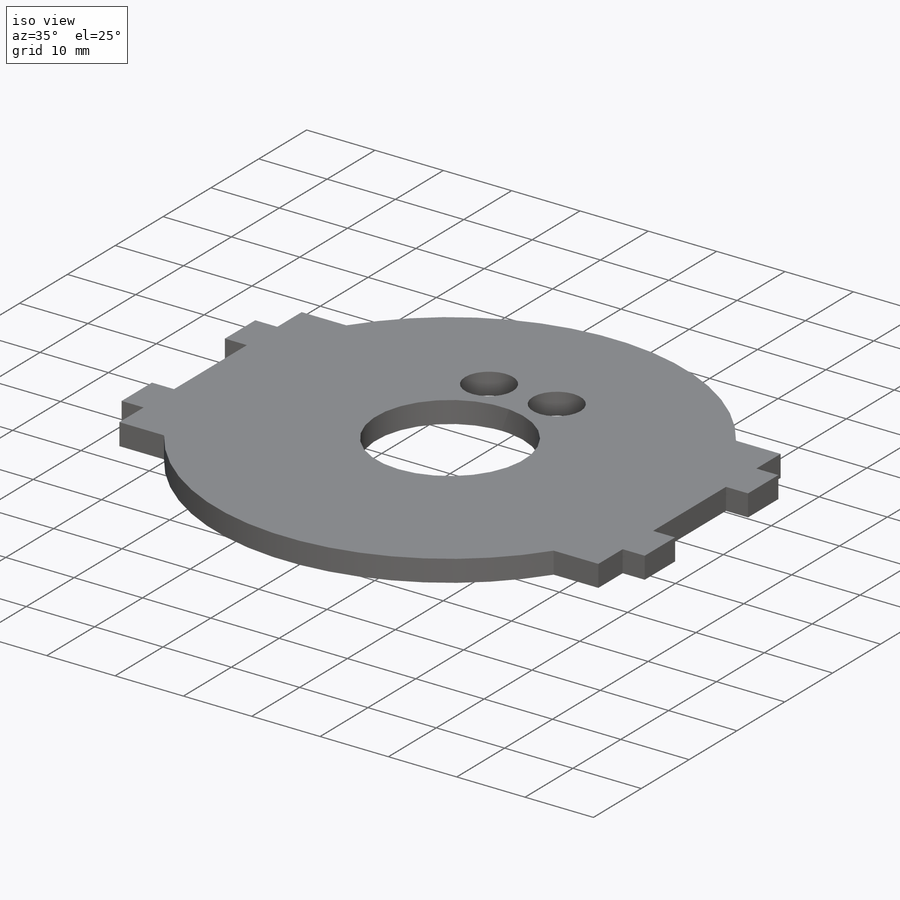
[diagram: iso view]
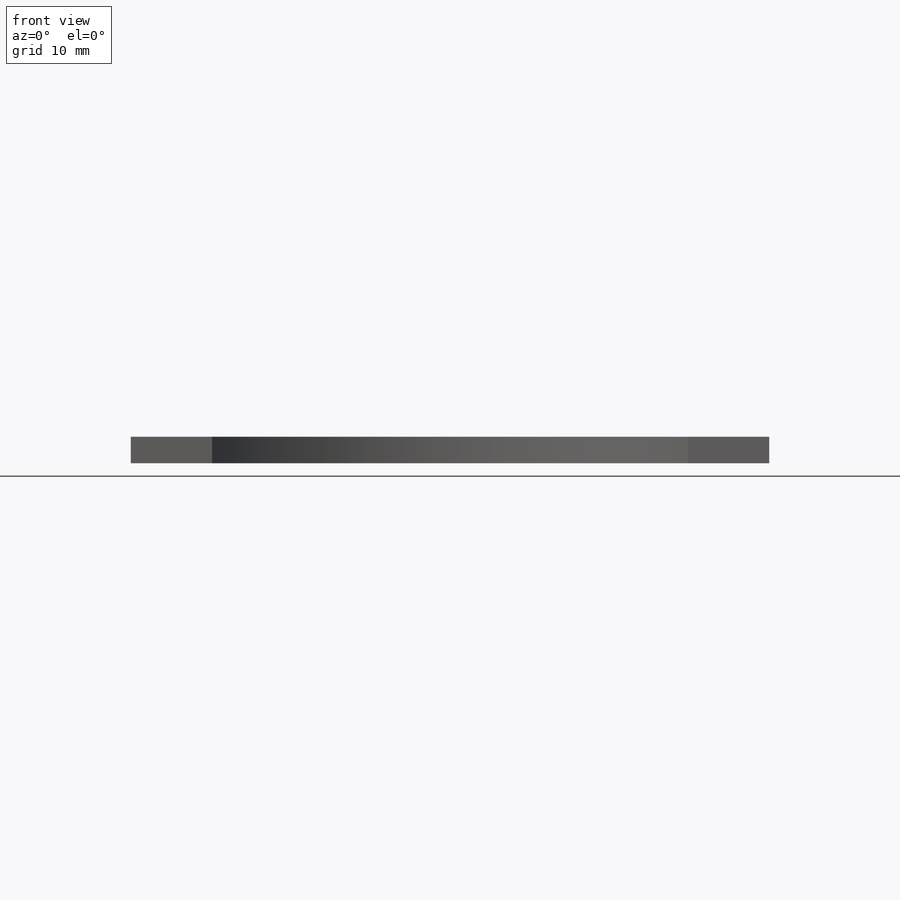
[diagram: front view]
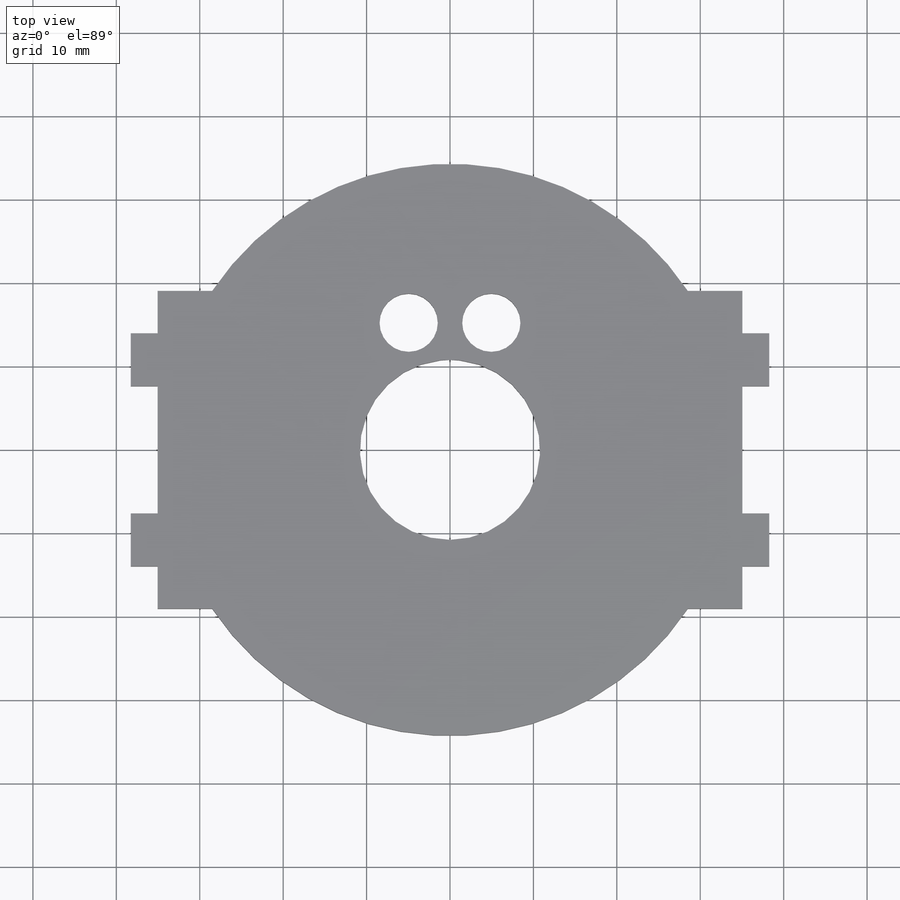
[diagram: top view]
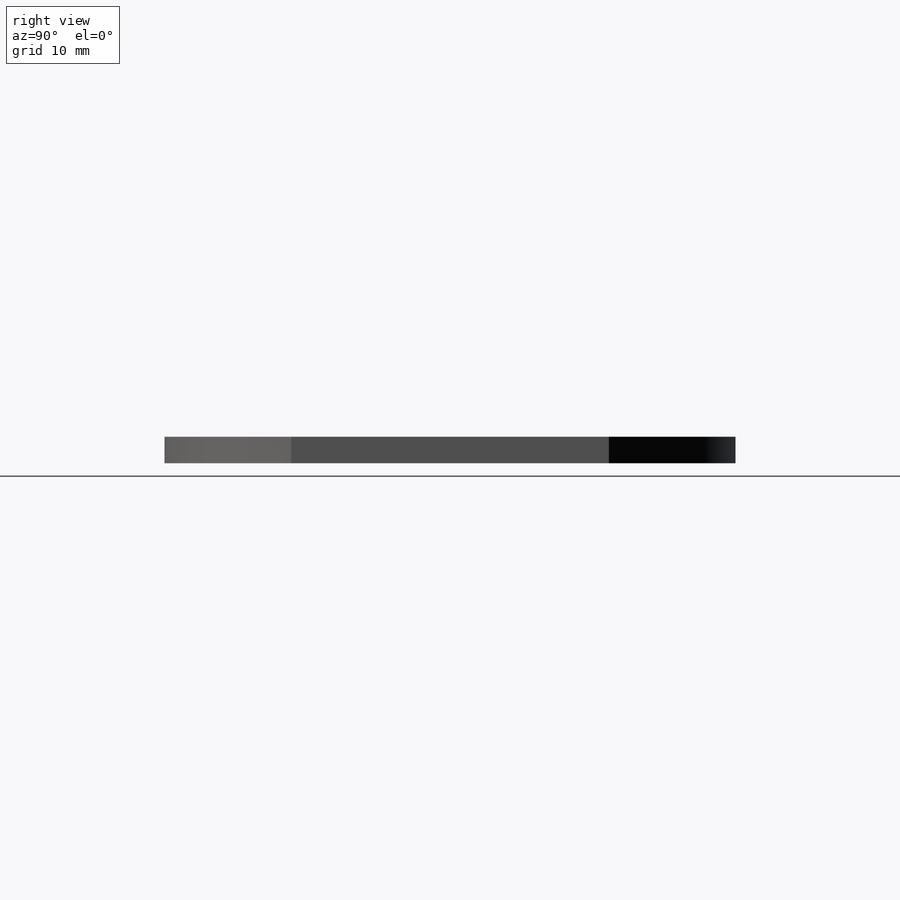
[diagram: right view]
SOLIDWORKS PART (.sldprt)
format: sldprt  version: not decoded by parser v0  size: 349,696 bytes
history: native  units: mm
features: sketch x5, extrude x3, cut_extrude x2, material x1, mirror x1 (+16 scaffold rows collapsed)
feature tree (28):
  scaffold x16  (default folders/planes/origin — collapsed)
  material  "Material <not specified>"
  sketch  "Sketch1"  dims[D1=38.1mm D2=70.104mm]
  extrude  "rectangular base"  Depth=3.175mm
  sketch  "Sketch2"  dims[D1=15.24mm D2=16.51mm]
  extrude  "circular base add on"  Depth=3.175mm
  sketch  "Sketch4"  dims[c1.D1=6.35mm c1.D2=3.2258mm c2.D1=6.35mm c2.D2=6.35mm c2.D3=3.2258mm c2.D4=3.2258mm c2.D5=7.62mm c2.D6=7.62mm]
  extrude  "tab"  Depth=3.175mm
  mirror  "Mirror1"
  sketch  "Sketch5"  dims[c1.D1=9.652mm c1.D2=31.623mm c2.D1=22.225mm c2.D2=45.72mm c2.D3=20.586mm c3.D1=21.59mm]
  cut_extrude  "Cut-Extrude1"  [1 undecoded]
  sketch  "Sketch6"  dims[D1=6.985mm D2=6.985mm]
  cut_extrude  "cut for screw access"  [1 undecoded]
decode coverage: 8 of 11 modeling features carry decoded parameters
note: 2 parameter values undecoded
note: suppression state not decoded; provenance and decode notes live in map.json
